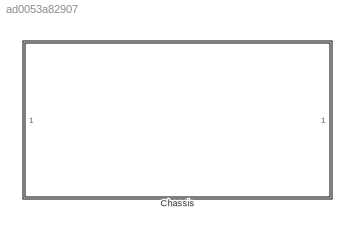
MODEL slx_ad0053a82907
KIND library
CONFIG AbsTol = auto
CONFIG EnableMultiTasking = off
CONFIG FixedStep = auto
CONFIG MaxStep = auto
CONFIG MinStep = auto
CONFIG RelTol = 1e-3
CONFIG SampleTimeConstraint = Unconstrained
CONFIG Solver = VariableStepAuto
CONFIG SolverName = VariableStepAuto
CONFIG StartTime = 0.0
CONFIG StopTime = 10.0
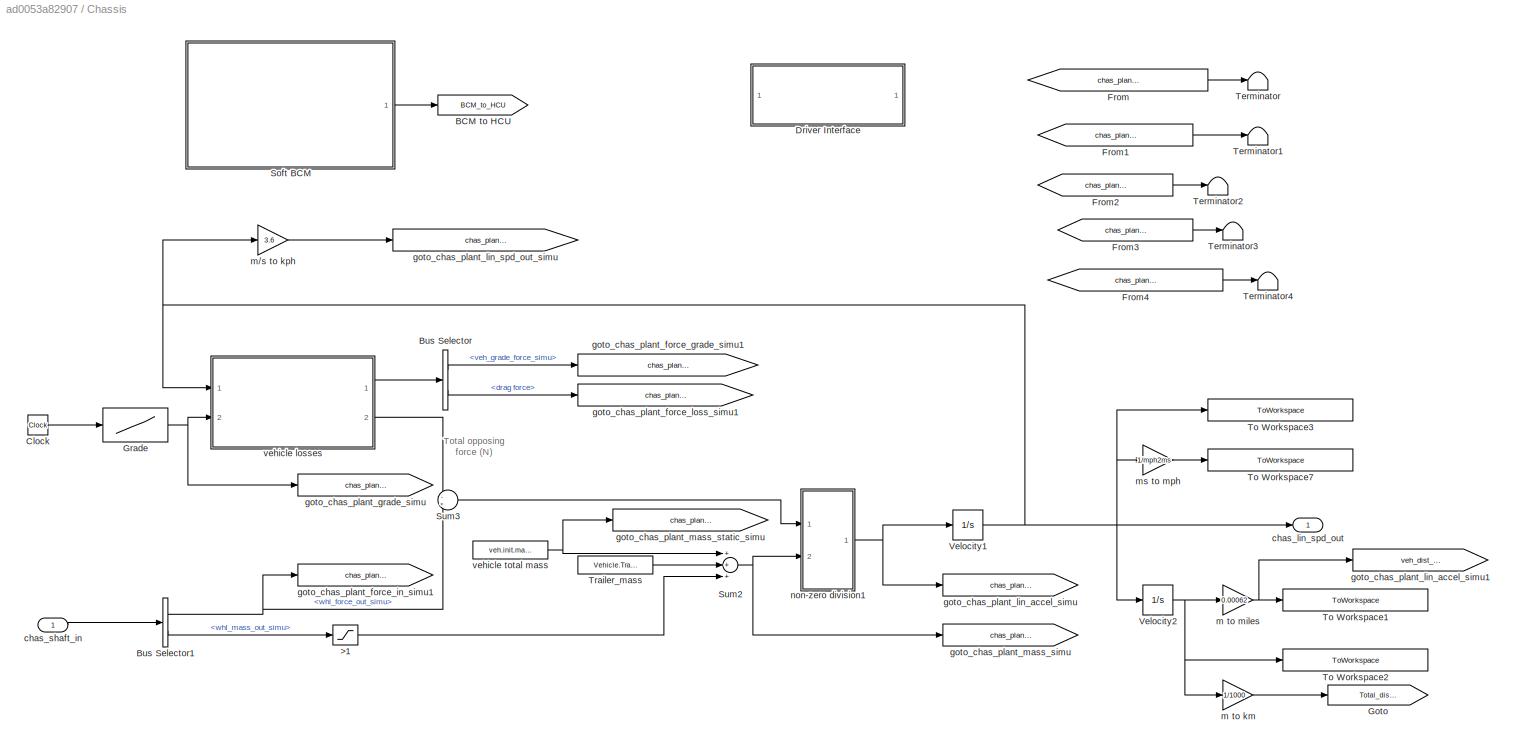
BLOCK [SubSystem] Chassis
  Ports = [1, 1]
  RequestExecContextInheritance = off
  Variant = off
BLOCK [Saturate] Chassis/>1
  InputPortMap = u0
  LowerLimit = 0
  Ports = [1, 1]
  UpperLimit = inf
BLOCK [Goto] Chassis/BCM to HCU
  GotoTag = BCM_to_HCU
  TagVisibility = global
BLOCK [BusSelector] Chassis/Bus Selector
  OutputAsBus = off
  OutputSignals = veh_grade_force_simu,drag force
  Ports = [1, 2]
BLOCK [BusSelector] Chassis/Bus Selector1
  OutputAsBus = off
  OutputSignals = whl_force_out_simu,whl_mass_out_simu
  Ports = [1, 2]
BLOCK [Clock] Chassis/Clock
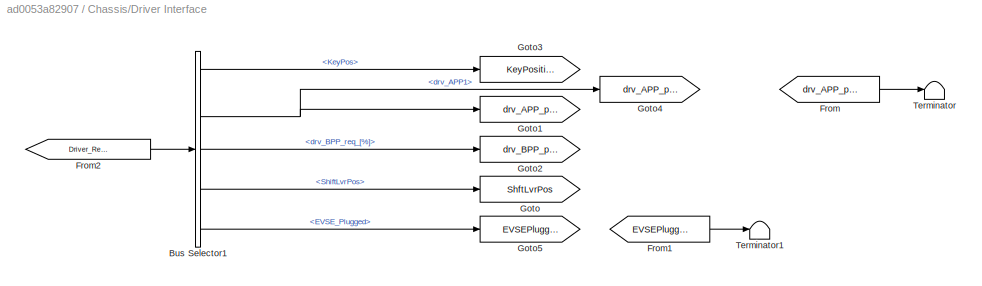
BLOCK [SubSystem] Chassis/Driver Interface
  Ports = []
  RequestExecContextInheritance = off
  Variant = off
BLOCK [BusSelector] Chassis/Driver Interface/Bus Selector1
  OutputAsBus = off
  OutputSignals = KeyPos,drv_APP1,drv_BPP_req_[%],ShiftLvrPos,EVSE_Plugged
  Ports = [1, 5]
BLOCK [From] Chassis/Driver Interface/From
  GotoTag = drv_APP_percent2
  TagVisibility = global
BLOCK [From] Chassis/Driver Interface/From1
  GotoTag = EVSEPlugged
  TagVisibility = global
BLOCK [From] Chassis/Driver Interface/From2
  GotoTag = Driver_Request
  TagVisibility = global
BLOCK [Goto] Chassis/Driver Interface/Goto
  GotoTag = ShftLvrPos
  TagVisibility = global
BLOCK [Goto] Chassis/Driver Interface/Goto1
  GotoTag = drv_APP_percent
  TagVisibility = global
BLOCK [Goto] Chassis/Driver Interface/Goto2
  GotoTag = drv_BPP_percent
  TagVisibility = global
BLOCK [Goto] Chassis/Driver Interface/Goto3
  GotoTag = KeyPosition
  TagVisibility = global
BLOCK [Goto] Chassis/Driver Interface/Goto4
  GotoTag = drv_APP_percent2
  TagVisibility = global
BLOCK [Goto] Chassis/Driver Interface/Goto5
  GotoTag = EVSEPlugged
  TagVisibility = global
BLOCK [Terminator] Chassis/Driver Interface/Terminator
BLOCK [Terminator] Chassis/Driver Interface/Terminator1
BLOCK [From] Chassis/From
  GotoTag = chas_plant_force_grade
  TagVisibility = global
BLOCK [From] Chassis/From1
  GotoTag = chas_plant_mass_static
  TagVisibility = global
BLOCK [From] Chassis/From2
  GotoTag = chas_plant_force_in
  TagVisibility = global
BLOCK [From] Chassis/From3
  GotoTag = chas_plant_mass
  TagVisibility = global
BLOCK [From] Chassis/From4
  GotoTag = chas_plant_force_loss
  TagVisibility = global
BLOCK [Goto] Chassis/Goto
  GotoTag = Total_dis_km
  TagVisibility = global
BLOCK [Lookup] Chassis/Grade
  InputValues = time
  SaturateOnIntegerOverflow = off
  Table = Grade
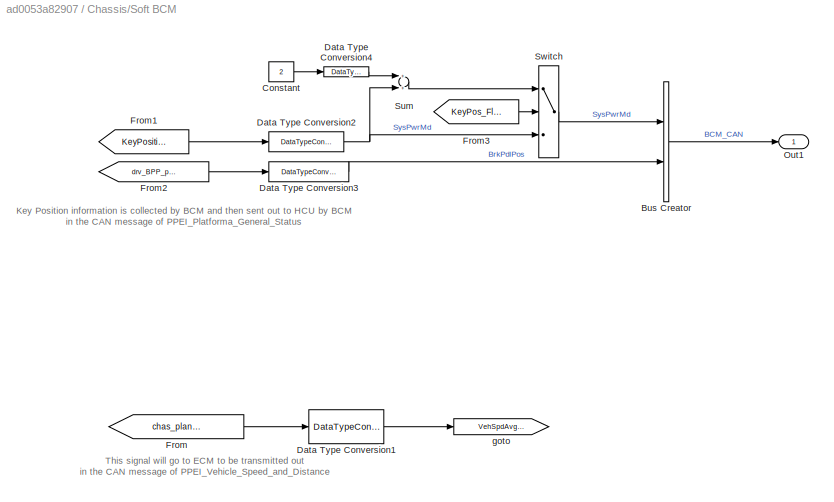
BLOCK [SubSystem] Chassis/Soft BCM
  Ports = [0, 1]
  RequestExecContextInheritance = off
  Variant = off
BLOCK [BusCreator] Chassis/Soft BCM/Bus Creator
  DisplayOption = bar
  InheritFromInputs = on
  Inputs = 2
  Ports = [2, 1]
BLOCK [Constant] Chassis/Soft BCM/Constant
  Value = 2
BLOCK [DataTypeConversion] Chassis/Soft BCM/Data Type Conversion1
  RndMeth = Floor
  SaturateOnIntegerOverflow = off
BLOCK [DataTypeConversion] Chassis/Soft BCM/Data Type Conversion2
  RndMeth = Floor
  SaturateOnIntegerOverflow = off
BLOCK [DataTypeConversion] Chassis/Soft BCM/Data Type Conversion3
  RndMeth = Floor
  SaturateOnIntegerOverflow = off
BLOCK [DataTypeConversion] Chassis/Soft BCM/Data Type Conversion4
  OutDataTypeStr = int8
  RndMeth = Floor
  SaturateOnIntegerOverflow = off
BLOCK [From] Chassis/Soft BCM/From
  GotoTag = chas_plant_lin_spd_out
  TagVisibility = global
BLOCK [From] Chassis/Soft BCM/From1
  GotoTag = KeyPosition
  TagVisibility = global
BLOCK [From] Chassis/Soft BCM/From2
  GotoTag = drv_BPP_percent
  TagVisibility = global
BLOCK [From] Chassis/Soft BCM/From3
  GotoTag = KeyPos_Flt_ON
BLOCK [Outport] Chassis/Soft BCM/Out1
  IconDisplay = Port number
BLOCK [Sum] Chassis/Soft BCM/Sum
  InputSameDT = off
  OutDataTypeStr = Inherit: Inherit via internal rule
  Ports = [2, 1]
  SaturateOnIntegerOverflow = off
BLOCK [Switch] Chassis/Soft BCM/Switch
  InputSameDT = off
  SaturateOnIntegerOverflow = off
  Threshold = 1
BLOCK [Goto] Chassis/Soft BCM/goto
  GotoTag = VehSpdAvgDrvn
  TagVisibility = global
BLOCK [Sum] Chassis/Sum2
  Inputs = +++
  Ports = [3, 1]
BLOCK [Sum] Chassis/Sum3
  IconShape = round
  Inputs = -+
  Ports = [2, 1]
BLOCK [Terminator] Chassis/Terminator
BLOCK [Terminator] Chassis/Terminator1
BLOCK [Terminator] Chassis/Terminator2
BLOCK [Terminator] Chassis/Terminator3
BLOCK [Terminator] Chassis/Terminator4
BLOCK [ToWorkspace] Chassis/To Workspace1
  Decimation = WORKSPACE_DECIMATION
  MaxDataPoints = inf
  Ports = [1]
  SampleTime = -1
  VariableName = distance_miles_hist
BLOCK [ToWorkspace] Chassis/To Workspace2
  Decimation = WORKSPACE_DECIMATION
  MaxDataPoints = inf
  Ports = [1]
  SampleTime = -1
  VariableName = veh_dist_meter_hist
BLOCK [ToWorkspace] Chassis/To Workspace3
  Decimation = WORKSPACE_DECIMATION
  MaxDataPoints = inf
  Ports = [1]
  SampleTime = -1
  VariableName = veh_spd_mps_hist
BLOCK [ToWorkspace] Chassis/To Workspace7
  Decimation = WORKSPACE_DECIMATION
  MaxDataPoints = inf
  Ports = [1]
  SampleTime = -1
  VariableName = veh_spd_mph_hist
BLOCK [Constant] Chassis/Trailer_mass
  Value = Vehicle.Trailer
BLOCK [Integrator] Chassis/Velocity1
  LimitOutput = on
  LowerSaturationLimit = 0
  Ports = [1, 1]
BLOCK [Integrator] Chassis/Velocity2
  LimitOutput = on
  LowerSaturationLimit = 0
  Ports = [1, 1]
BLOCK [Outport] Chassis/chas_lin_spd_out
  IconDisplay = Port number
BLOCK [Inport] Chassis/chas_shaft_in
  IconDisplay = Port number
BLOCK [Goto] Chassis/goto_chas_plant_force_grade_simu1
  GotoTag = chas_plant_force_grade
  TagVisibility = global
BLOCK [Goto] Chassis/goto_chas_plant_force_in_simu1
  GotoTag = chas_plant_force_in
  TagVisibility = global
BLOCK [Goto] Chassis/goto_chas_plant_force_loss_simu1
  GotoTag = chas_plant_force_loss
  TagVisibility = global
BLOCK [Goto] Chassis/goto_chas_plant_grade_simu
  GotoTag = chas_plant_grade
  TagVisibility = global
BLOCK [Goto] Chassis/goto_chas_plant_lin_accel_simu
  GotoTag = chas_plant_lin_accel
  TagVisibility = global
BLOCK [Goto] Chassis/goto_chas_plant_lin_accel_simu1
  GotoTag = veh_dist_miles
  TagVisibility = global
BLOCK [Goto] Chassis/goto_chas_plant_lin_spd_out_simu
  GotoTag = chas_plant_lin_spd_out
  TagVisibility = global
BLOCK [Goto] Chassis/goto_chas_plant_mass_simu
  GotoTag = chas_plant_mass
  TagVisibility = global
BLOCK [Goto] Chassis/goto_chas_plant_mass_static_simu
  GotoTag = chas_plant_mass_static
  TagVisibility = global
BLOCK [Gain] Chassis/m to km
  Gain = 1/1000
  OutDataTypeStr = Inherit: Inherit via internal rule
  ParamDataTypeStr = Inherit: Inherit via internal rule
  SaturateOnIntegerOverflow = off
BLOCK [Gain] Chassis/m to miles
  Gain = 0.00062
  OutDataTypeStr = Inherit: Inherit via internal rule
  ParamDataTypeStr = Inherit: Inherit via internal rule
  SaturateOnIntegerOverflow = off
BLOCK [Gain] Chassis/m//s to kph
  Gain = 3.6
  OutDataTypeStr = Inherit: Inherit via internal rule
  ParamDataTypeStr = Inherit: Inherit via internal rule
  SaturateOnIntegerOverflow = off
BLOCK [Gain] Chassis/ms to mph
  Gain = 1/mph2ms
  OutDataTypeStr = Inherit: Inherit via internal rule
  ParamDataTypeStr = Inherit: Inherit via internal rule
  SaturateOnIntegerOverflow = off
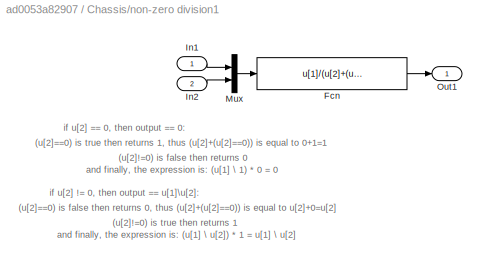
BLOCK [SubSystem] Chassis/non-zero division1
  Ports = [2, 1]
  RequestExecContextInheritance = off
  Variant = off
BLOCK [Fcn] Chassis/non-zero division1/Fcn
  Expr = u[1]/(u[2]+(u[2]==0))*(u[2]!=0)
BLOCK [Inport] Chassis/non-zero division1/In1
  IconDisplay = Port number
BLOCK [Inport] Chassis/non-zero division1/In2
  IconDisplay = Port number
  Port = 2
BLOCK [Mux] Chassis/non-zero division1/Mux
  DisplayOption = bar
  Inputs = 2
  Ports = [2, 1]
BLOCK [Outport] Chassis/non-zero division1/Out1
  IconDisplay = Port number
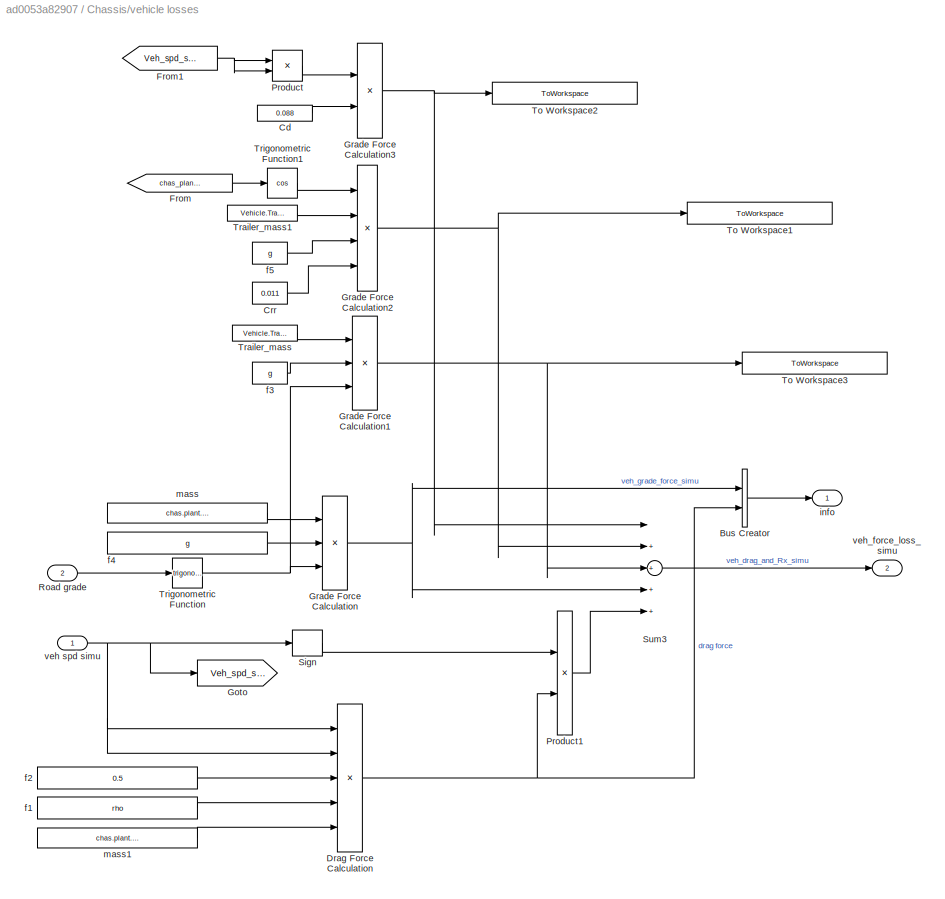
BLOCK [SubSystem] Chassis/vehicle losses
  Ports = [2, 2]
  RequestExecContextInheritance = off
  Variant = off
BLOCK [BusCreator] Chassis/vehicle losses/Bus Creator
  DisplayOption = bar
  InheritFromInputs = on
  Inputs = 2
  Ports = [2, 1]
BLOCK [Constant] Chassis/vehicle losses/Cd
  Value = 0.088
BLOCK [Constant] Chassis/vehicle losses/Crr
  Value = 0.011
BLOCK [Product] Chassis/vehicle losses/Drag Force Calculation
  Inputs = 5
  Ports = [5, 1]
  RndMeth = Floor
BLOCK [From] Chassis/vehicle losses/From
  GotoTag = chas_plant_grade
  TagVisibility = global
BLOCK [From] Chassis/vehicle losses/From1
  GotoTag = Veh_spd_simu
BLOCK [Goto] Chassis/vehicle losses/Goto
  GotoTag = Veh_spd_simu
BLOCK [Product] Chassis/vehicle losses/Grade Force Calculation
  Inputs = 3
  Ports = [3, 1]
  RndMeth = Floor
BLOCK [Product] Chassis/vehicle losses/Grade Force Calculation1
  Inputs = 3
  Ports = [3, 1]
  RndMeth = Floor
BLOCK [Product] Chassis/vehicle losses/Grade Force Calculation2
  Inputs = 4
  Ports = [4, 1]
  RndMeth = Floor
BLOCK [Product] Chassis/vehicle losses/Grade Force Calculation3
  Ports = [2, 1]
  RndMeth = Floor
BLOCK [Product] Chassis/vehicle losses/Product
  InputSameDT = off
  OutDataTypeStr = Inherit: Inherit via internal rule
  Ports = [2, 1]
  RndMeth = Floor
  SaturateOnIntegerOverflow = off
BLOCK [Product] Chassis/vehicle losses/Product1
  Ports = [2, 1]
  RndMeth = Floor
BLOCK [Inport] Chassis/vehicle losses/Road grade
  IconDisplay = Port number
  Port = 2
BLOCK [Signum] Chassis/vehicle losses/Sign
BLOCK [Sum] Chassis/vehicle losses/Sum3
  Inputs = |+++++
  Ports = [5, 1]
BLOCK [ToWorkspace] Chassis/vehicle losses/To Workspace1
  Decimation = WORKSPACE_DECIMATION
  MaxDataPoints = inf
  Ports = [1]
  SampleTime = -1
  VariableName = trail_roll_force
BLOCK [ToWorkspace] Chassis/vehicle losses/To Workspace2
  Decimation = WORKSPACE_DECIMATION
  MaxDataPoints = inf
  Ports = [1]
  SampleTime = -1
  VariableName = trail_aero_force
BLOCK [ToWorkspace] Chassis/vehicle losses/To Workspace3
  Decimation = WORKSPACE_DECIMATION
  MaxDataPoints = inf
  Ports = [1]
  SampleTime = -1
  VariableName = trail_grd_force
BLOCK [Constant] Chassis/vehicle losses/Trailer_mass
  Value = Vehicle.Trailer
BLOCK [Constant] Chassis/vehicle losses/Trailer_mass1
  Value = Vehicle.Trailer
BLOCK [Trigonometry] Chassis/vehicle losses/Trigonometric Function
  Ports = [1, 1]
BLOCK [Trigonometry] Chassis/vehicle losses/Trigonometric Function1
  Operator = cos
  Ports = [1, 1]
BLOCK [Constant] Chassis/vehicle losses/f1
  Value = rho
BLOCK [Constant] Chassis/vehicle losses/f2
  Value = 0.5
BLOCK [Constant] Chassis/vehicle losses/f3
  Value = g
BLOCK [Constant] Chassis/vehicle losses/f4
  Value = g
BLOCK [Constant] Chassis/vehicle losses/f5
  Value = g
BLOCK [Outport] Chassis/vehicle losses/info
  IconDisplay = Port number
BLOCK [Constant] Chassis/vehicle losses/mass
  Value = chas.plant.init.mass.body
BLOCK [Constant] Chassis/vehicle losses/mass1
  Value = chas.plant.init.area_drag
BLOCK [Inport] Chassis/vehicle losses/veh spd simu
  IconDisplay = Port number
BLOCK [Outport] Chassis/vehicle losses/veh_force_loss_simu
  IconDisplay = Port number
  Port = 2
BLOCK [Constant] Chassis/vehicle total mass
  Value = veh.init.mass
ANNOTATION Chassis: Total opposing force (N)
ANNOTATION Chassis/Soft BCM: This signal will go to ECM to be transmitted out in the CAN message of PPEI_Vehicle_Speed_and_Distance
ANNOTATION Chassis/Soft BCM: Key Position information is collected by BCM and then sent out to HCU by BCM in the CAN message of PPEI_Platforma_General_Status
ANNOTATION Chassis/non-zero division1: (u[2]!=0) is false then returns 0
ANNOTATION Chassis/non-zero division1: (u[2]!=0) is true then returns 1
ANNOTATION Chassis/non-zero division1: (u[2]==0) is false then returns 0, thus (u[2]+(u[2]==0)) is equal to u[2]+0=u[2]
ANNOTATION Chassis/non-zero division1: (u[2]==0) is true then returns 1, thus (u[2]+(u[2]==0)) is equal to 0+1=1
ANNOTATION Chassis/non-zero division1: and finally, the expression is: (u[1] \ 1) * 0 = 0
ANNOTATION Chassis/non-zero division1: and finally, the expression is: (u[1] \ u[2]) * 1 = u[1] \ u[2]
ANNOTATION Chassis/non-zero division1: if u[2] != 0, then output == u[1]\u[2]:
ANNOTATION Chassis/non-zero division1: if u[2] == 0, then output == 0:
LINE Chassis/>1:1 -> Chassis/Sum2:3
NET Chassis/Bus Selector1:1 -> Chassis/Sum3:2, Chassis/goto_chas_plant_force_in_simu1:1
LINE Chassis/Bus Selector1:2 -> Chassis/>1:1
LINE Chassis/Bus Selector:1 -> Chassis/goto_chas_plant_force_grade_simu1:1
LINE Chassis/Bus Selector:2 -> Chassis/goto_chas_plant_force_loss_simu1:1
LINE Chassis/Clock:1 -> Chassis/Grade:1
LINE Chassis/Driver Interface/Bus Selector1:1 -> Chassis/Driver Interface/Goto3:1
NET Chassis/Driver Interface/Bus Selector1:2 -> Chassis/Driver Interface/Goto1:1, Chassis/Driver Interface/Goto4:1
LINE Chassis/Driver Interface/Bus Selector1:3 -> Chassis/Driver Interface/Goto2:1
LINE Chassis/Driver Interface/Bus Selector1:4 -> Chassis/Driver Interface/Goto:1
LINE Chassis/Driver Interface/Bus Selector1:5 -> Chassis/Driver Interface/Goto5:1
LINE Chassis/Driver Interface/From1:1 -> Chassis/Driver Interface/Terminator1:1
LINE Chassis/Driver Interface/From2:1 -> Chassis/Driver Interface/Bus Selector1:1
LINE Chassis/Driver Interface/From:1 -> Chassis/Driver Interface/Terminator:1
LINE Chassis/From1:1 -> Chassis/Terminator1:1
LINE Chassis/From2:1 -> Chassis/Terminator2:1
LINE Chassis/From3:1 -> Chassis/Terminator3:1
LINE Chassis/From4:1 -> Chassis/Terminator4:1
LINE Chassis/From:1 -> Chassis/Terminator:1
NET Chassis/Grade:1 -> Chassis/goto_chas_plant_grade_simu:1, Chassis/vehicle losses:2
LINE Chassis/Soft BCM/Bus Creator:1 -> Chassis/Soft BCM/Out1:1
LINE Chassis/Soft BCM/Constant:1 -> Chassis/Soft BCM/Data Type Conversion4:1
LINE Chassis/Soft BCM/Data Type Conversion1:1 -> Chassis/Soft BCM/goto:1
NET Chassis/Soft BCM/Data Type Conversion2:1 -> Chassis/Soft BCM/Sum:2, Chassis/Soft BCM/Switch:3
LINE Chassis/Soft BCM/Data Type Conversion3:1 -> Chassis/Soft BCM/Bus Creator:2
LINE Chassis/Soft BCM/Data Type Conversion4:1 -> Chassis/Soft BCM/Sum:1
LINE Chassis/Soft BCM/From1:1 -> Chassis/Soft BCM/Data Type Conversion2:1
LINE Chassis/Soft BCM/From2:1 -> Chassis/Soft BCM/Data Type Conversion3:1
LINE Chassis/Soft BCM/From3:1 -> Chassis/Soft BCM/Switch:2
LINE Chassis/Soft BCM/From:1 -> Chassis/Soft BCM/Data Type Conversion1:1
LINE Chassis/Soft BCM/Sum:1 -> Chassis/Soft BCM/Switch:1
LINE Chassis/Soft BCM/Switch:1 -> Chassis/Soft BCM/Bus Creator:1
LINE Chassis/Soft BCM:1 -> Chassis/BCM to HCU:1
NET Chassis/Sum2:1 -> Chassis/goto_chas_plant_mass_simu:1, Chassis/non-zero division1:2
LINE Chassis/Sum3:1 -> Chassis/non-zero division1:1
LINE Chassis/Trailer_mass:1 -> Chassis/Sum2:2
NET Chassis/Velocity1:1 -> Chassis/To Workspace3:1, Chassis/Velocity2:1, Chassis/chas_lin_spd_out:1, Chassis/m//s to kph:1, Chassis/ms to mph:1, Chassis/vehicle losses:1
NET Chassis/Velocity2:1 -> Chassis/To Workspace2:1, Chassis/m to km:1, Chassis/m to miles:1
LINE Chassis/chas_shaft_in:1 -> Chassis/Bus Selector1:1
LINE Chassis/m to km:1 -> Chassis/Goto:1
NET Chassis/m to miles:1 -> Chassis/To Workspace1:1, Chassis/goto_chas_plant_lin_accel_simu1:1
LINE Chassis/m//s to kph:1 -> Chassis/goto_chas_plant_lin_spd_out_simu:1
LINE Chassis/ms to mph:1 -> Chassis/To Workspace7:1
LINE Chassis/non-zero division1/Fcn:1 -> Chassis/non-zero division1/Out1:1
LINE Chassis/non-zero division1/In1:1 -> Chassis/non-zero division1/Mux:1
LINE Chassis/non-zero division1/In2:1 -> Chassis/non-zero division1/Mux:2
LINE Chassis/non-zero division1/Mux:1 -> Chassis/non-zero division1/Fcn:1
NET Chassis/non-zero division1:1 -> Chassis/Velocity1:1, Chassis/goto_chas_plant_lin_accel_simu:1
LINE Chassis/vehicle losses/Bus Creator:1 -> Chassis/vehicle losses/info:1
LINE Chassis/vehicle losses/Cd:1 -> Chassis/vehicle losses/Grade Force Calculation3:2
LINE Chassis/vehicle losses/Crr:1 -> Chassis/vehicle losses/Grade Force Calculation2:4
NET Chassis/vehicle losses/Drag Force Calculation:1 -> Chassis/vehicle losses/Bus Creator:2, Chassis/vehicle losses/Product1:2
NET Chassis/vehicle losses/From1:1 -> Chassis/vehicle losses/Product:1, Chassis/vehicle losses/Product:2
LINE Chassis/vehicle losses/From:1 -> Chassis/vehicle losses/Trigonometric Function1:1
NET Chassis/vehicle losses/Grade Force Calculation1:1 -> Chassis/vehicle losses/Sum3:3, Chassis/vehicle losses/To Workspace3:1
NET Chassis/vehicle losses/Grade Force Calculation2:1 -> Chassis/vehicle losses/Sum3:2, Chassis/vehicle losses/To Workspace1:1
NET Chassis/vehicle losses/Grade Force Calculation3:1 -> Chassis/vehicle losses/Sum3:1, Chassis/vehicle losses/To Workspace2:1
NET Chassis/vehicle losses/Grade Force Calculation:1 -> Chassis/vehicle losses/Bus Creator:1, Chassis/vehicle losses/Sum3:4
LINE Chassis/vehicle losses/Product1:1 -> Chassis/vehicle losses/Sum3:5
LINE Chassis/vehicle losses/Product:1 -> Chassis/vehicle losses/Grade Force Calculation3:1
LINE Chassis/vehicle losses/Road grade:1 -> Chassis/vehicle losses/Trigonometric Function:1
LINE Chassis/vehicle losses/Sign:1 -> Chassis/vehicle losses/Product1:1
LINE Chassis/vehicle losses/Sum3:1 -> Chassis/vehicle losses/veh_force_loss_simu:1
LINE Chassis/vehicle losses/Trailer_mass1:1 -> Chassis/vehicle losses/Grade Force Calculation2:2
LINE Chassis/vehicle losses/Trailer_mass:1 -> Chassis/vehicle losses/Grade Force Calculation1:1
LINE Chassis/vehicle losses/Trigonometric Function1:1 -> Chassis/vehicle losses/Grade Force Calculation2:1
NET Chassis/vehicle losses/Trigonometric Function:1 -> Chassis/vehicle losses/Grade Force Calculation1:3, Chassis/vehicle losses/Grade Force Calculation:3
LINE Chassis/vehicle losses/f1:1 -> Chassis/vehicle losses/Drag Force Calculation:4
LINE Chassis/vehicle losses/f2:1 -> Chassis/vehicle losses/Drag Force Calculation:3
LINE Chassis/vehicle losses/f3:1 -> Chassis/vehicle losses/Grade Force Calculation1:2
LINE Chassis/vehicle losses/f4:1 -> Chassis/vehicle losses/Grade Force Calculation:2
LINE Chassis/vehicle losses/f5:1 -> Chassis/vehicle losses/Grade Force Calculation2:3
LINE Chassis/vehicle losses/mass1:1 -> Chassis/vehicle losses/Drag Force Calculation:5
LINE Chassis/vehicle losses/mass:1 -> Chassis/vehicle losses/Grade Force Calculation:1
NET Chassis/vehicle losses/veh spd simu:1 -> Chassis/vehicle losses/Drag Force Calculation:1, Chassis/vehicle losses/Drag Force Calculation:2, Chassis/vehicle losses/Goto:1, Chassis/vehicle losses/Sign:1
LINE Chassis/vehicle losses:1 -> Chassis/Bus Selector:1
LINE Chassis/vehicle losses:2 -> Chassis/Sum3:1
NET Chassis/vehicle total mass:1 -> Chassis/Sum2:1, Chassis/goto_chas_plant_mass_static_simu:1
note: NET lines group one-source signal fan-out (src -> all destinations, sorted); 1:1 wires keep LINE
